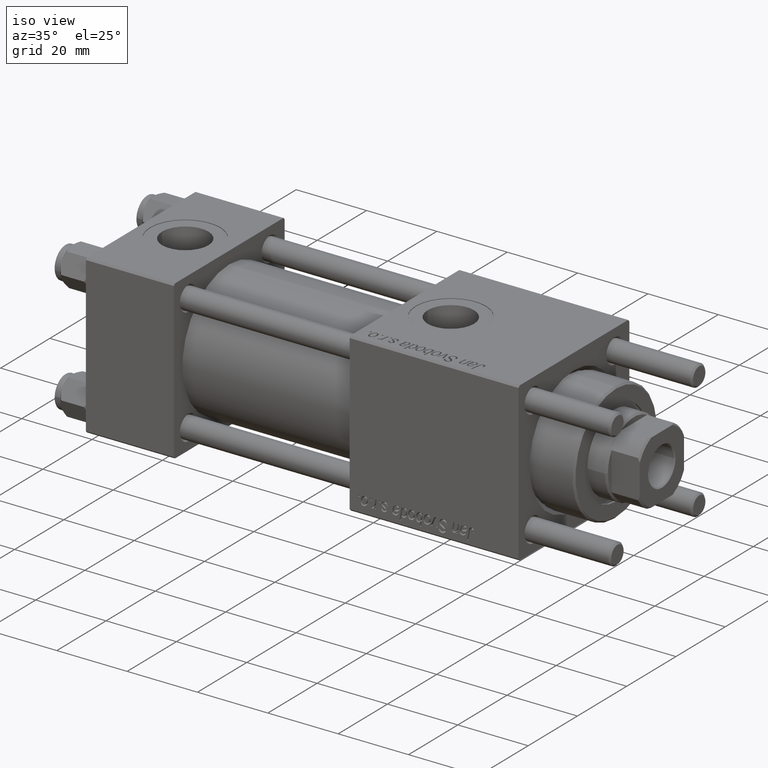
[diagram: clean part render]
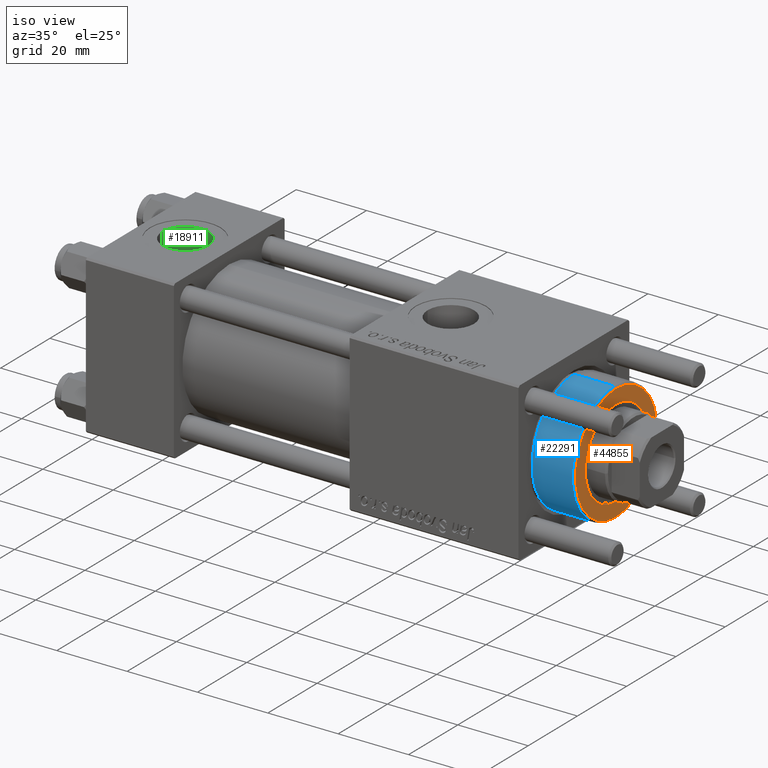
[diagram: same view with three faces highlighted in distinct colors, each labeled with its STEP entity id]
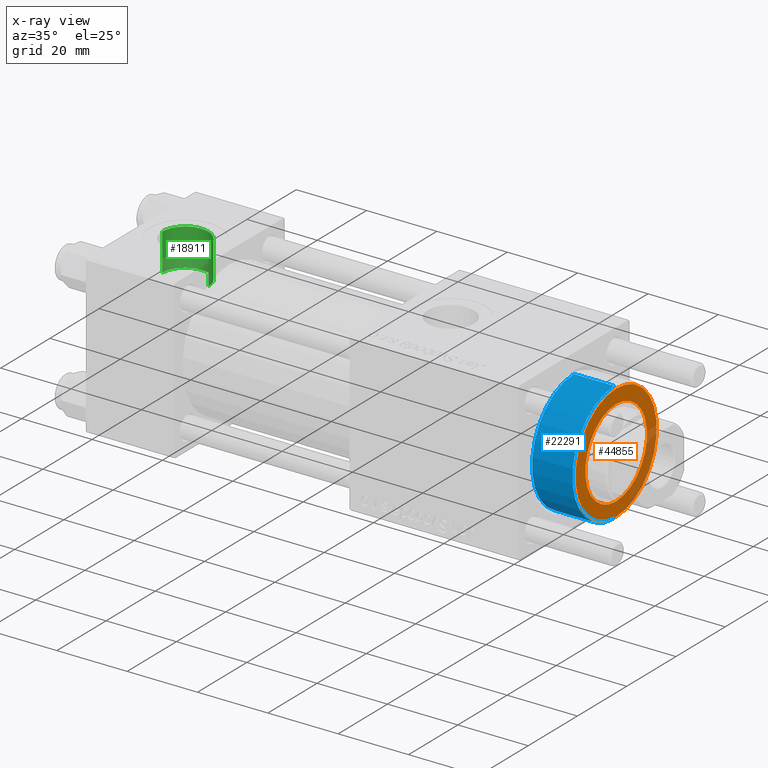
[diagram: x-ray of the same camera — body ghosted, the three highlighted faces saturated]
A machine part, iso view with three faces highlighted in distinct colors.
The next image is the same camera in x-ray (body ghosted, the three faces saturated) — at least one of them is partly hidden behind the body in this view.
Their STEP definitions:

[orange] entity #44855 — the highlighted planar face has unit normal (1, 0, 0).
#1667 = DIRECTION ( 'NONE',  ( 0.000000000000000000, 0.000000000000000000, 1.000000000000000000 ) ) ;
#2051 = VERTEX_POINT ( 'NONE', #17337 ) ;
#3346 = CIRCLE ( 'NONE', #47437, 12.50000000000000000 ) ;
#3363 = EDGE_CURVE ( 'NONE', #33129, #2051, #17204, .T. ) ;
#5170 = DIRECTION ( 'NONE',  ( 1.000000000000000000, 0.000000000000000000, -0.000000000000000000 ) ) ;
#6328 = CARTESIAN_POINT ( 'NONE',  ( 0.000000000000000000, 0.000000000000000000, 40.70000000000000284 ) ) ;
#6437 = CARTESIAN_POINT ( 'NONE',  ( 0.000000000000000000, 0.000000000000000000, 40.70000000000000284 ) ) ;
#9731 = ORIENTED_EDGE ( 'NONE', *, *, #32327, .F. ) ;
#10447 = DIRECTION ( 'NONE',  ( 1.000000000000000000, 0.000000000000000000, 0.000000000000000000 ) ) ;
#10916 = CIRCLE ( 'NONE', #15515, 16.49999999999999289 ) ;
#12215 = EDGE_LOOP ( 'NONE', ( #9731, #56631 ) ) ;
#13026 = CARTESIAN_POINT ( 'NONE',  ( -16.49999999999999289, 0.000000000000000000, 40.70000000000000284 ) ) ;
#15175 = CARTESIAN_POINT ( 'NONE',  ( 0.000000000000000000, 0.000000000000000000, 40.70000000000000284 ) ) ;
#15515 = AXIS2_PLACEMENT_3D ( 'NONE', #6437, #23952, #19645 ) ;
#17204 = CIRCLE ( 'NONE', #23636, 16.49999999999999289 ) ;
#17337 = CARTESIAN_POINT ( 'NONE',  ( 16.49999999999999289, 2.051283388571816493E-15, 40.70000000000000284 ) ) ;
#18715 = VERTEX_POINT ( 'NONE', #21738 ) ;
#19645 = DIRECTION ( 'NONE',  ( 1.000000000000000000, 0.000000000000000000, 0.000000000000000000 ) ) ;
#20664 = DIRECTION ( 'NONE',  ( 1.000000000000000000, 0.000000000000000000, 0.000000000000000000 ) ) ;
#21738 = CARTESIAN_POINT ( 'NONE',  ( 12.50000000000000000, 0.000000000000000000, 40.70000000000000284 ) ) ;
#22135 = FACE_BOUND ( 'NONE', #12215, .T. ) ;
#23636 = AXIS2_PLACEMENT_3D ( 'NONE', #6328, #23851, #20664 ) ;
#23851 = DIRECTION ( 'NONE',  ( 0.000000000000000000, 0.000000000000000000, 1.000000000000000000 ) ) ;
#23952 = DIRECTION ( 'NONE',  ( 0.000000000000000000, 0.000000000000000000, 1.000000000000000000 ) ) ;
#25265 = EDGE_LOOP ( 'NONE', ( #43369, #30586 ) ) ;
#25487 = CIRCLE ( 'NONE', #48456, 12.50000000000000000 ) ;
#25880 = CARTESIAN_POINT ( 'NONE',  ( 0.000000000000000000, 0.000000000000000000, 40.70000000000000284 ) ) ;
#30586 = ORIENTED_EDGE ( 'NONE', *, *, #39461, .T. ) ;
#31188 = CARTESIAN_POINT ( 'NONE',  ( -12.50000000000000000, 1.530808498934191521E-15, 40.70000000000000284 ) ) ;
#31365 = PLANE ( 'NONE',  #55893 ) ;
#32327 = EDGE_CURVE ( 'NONE', #18715, #35550, #3346, .T. ) ;
#33129 = VERTEX_POINT ( 'NONE', #13026 ) ;
#35297 = EDGE_CURVE ( 'NONE', #35550, #18715, #25487, .T. ) ;
#35550 = VERTEX_POINT ( 'NONE', #31188 ) ;
#39461 = EDGE_CURVE ( 'NONE', #2051, #33129, #10916, .T. ) ;
#39990 = FACE_OUTER_BOUND ( 'NONE', #25265, .T. ) ;
#41369 = DIRECTION ( 'NONE',  ( 1.000000000000000000, 0.000000000000000000, 0.000000000000000000 ) ) ;
#43369 = ORIENTED_EDGE ( 'NONE', *, *, #3363, .T. ) ;
#44584 = DIRECTION ( 'NONE',  ( 0.000000000000000000, 0.000000000000000000, 1.000000000000000000 ) ) ;
#44855 = ADVANCED_FACE ( 'NONE', ( #22135, #39990 ), #31365, .T. ) ;
#47437 = AXIS2_PLACEMENT_3D ( 'NONE', #50499, #49843, #10447 ) ;
#48456 = AXIS2_PLACEMENT_3D ( 'NONE', #15175, #1667, #41369 ) ;
#49843 = DIRECTION ( 'NONE',  ( 0.000000000000000000, 0.000000000000000000, 1.000000000000000000 ) ) ;
#50499 = CARTESIAN_POINT ( 'NONE',  ( 0.000000000000000000, 0.000000000000000000, 40.70000000000000284 ) ) ;
#55893 = AXIS2_PLACEMENT_3D ( 'NONE', #25880, #44584, #5170 ) ;
#56631 = ORIENTED_EDGE ( 'NONE', *, *, #35297, .F. ) ;

[blue] entity #22291 — the highlighted cylindrical surface (partial cylindrical patch) has radius 17 mm, axis along (-1, -0, 0).
#986 = VERTEX_POINT ( 'NONE', #52959 ) ;
#5103 = AXIS2_PLACEMENT_3D ( 'NONE', #20287, #32974, #15970 ) ;
#6078 = CYLINDRICAL_SURFACE ( 'NONE', #12223, 17.00000000000000000 ) ;
#6815 = LINE ( 'NONE', #55375, #33228 ) ;
#7643 = VERTEX_POINT ( 'NONE', #9844 ) ;
#7772 = VERTEX_POINT ( 'NONE', #38866 ) ;
#9844 = CARTESIAN_POINT ( 'NONE',  ( -17.00000000000000000, 0.000000000000000000, 40.19999999999999574 ) ) ;
#10185 = CARTESIAN_POINT ( 'NONE',  ( -17.00000000000000000, 0.000000000000000000, 28.69999999999999929 ) ) ;
#12223 = AXIS2_PLACEMENT_3D ( 'NONE', #49498, #23588, #22750 ) ;
#12278 = ORIENTED_EDGE ( 'NONE', *, *, #52351, .F. ) ;
#15970 = DIRECTION ( 'NONE',  ( 1.000000000000000000, 0.000000000000000000, 0.000000000000000000 ) ) ;
#15995 = DIRECTION ( 'NONE',  ( -0.000000000000000000, -0.000000000000000000, -1.000000000000000000 ) ) ;
#17890 = DIRECTION ( 'NONE',  ( 1.000000000000000000, 0.000000000000000000, 0.000000000000000000 ) ) ;
#18360 = LINE ( 'NONE', #36777, #55529 ) ;
#20287 = CARTESIAN_POINT ( 'NONE',  ( 0.000000000000000000, 0.000000000000000000, 40.19999999999999574 ) ) ;
#21058 = ORIENTED_EDGE ( 'NONE', *, *, #29502, .T. ) ;
#21628 = DIRECTION ( 'NONE',  ( 0.000000000000000000, 0.000000000000000000, 1.000000000000000000 ) ) ;
#22291 = ADVANCED_FACE ( 'NONE', ( #45481 ), #6078, .T. ) ;
#22750 = DIRECTION ( 'NONE',  ( -1.000000000000000000, 0.000000000000000000, 0.000000000000000000 ) ) ;
#23588 = DIRECTION ( 'NONE',  ( -0.000000000000000000, -0.000000000000000000, -1.000000000000000000 ) ) ;
#25105 = CARTESIAN_POINT ( 'NONE',  ( 0.000000000000000000, 0.000000000000000000, 28.69999999999999929 ) ) ;
#25510 = ORIENTED_EDGE ( 'NONE', *, *, #40197, .T. ) ;
#28314 = EDGE_CURVE ( 'NONE', #7643, #28554, #18360, .T. ) ;
#28554 = VERTEX_POINT ( 'NONE', #10185 ) ;
#29502 = EDGE_CURVE ( 'NONE', #986, #7643, #50978, .T. ) ;
#31203 = EDGE_LOOP ( 'NONE', ( #12278, #21058, #50396, #25510 ) ) ;
#32974 = DIRECTION ( 'NONE',  ( 0.000000000000000000, 0.000000000000000000, -1.000000000000000000 ) ) ;
#33228 = VECTOR ( 'NONE', #15995, 1000.000000000000000 ) ;
#36777 = CARTESIAN_POINT ( 'NONE',  ( -17.00000000000000000, 0.000000000000000000, 40.70000000000000284 ) ) ;
#38866 = CARTESIAN_POINT ( 'NONE',  ( 17.00000000000000000, 2.081899558550500280E-15, 28.69999999999999929 ) ) ;
#40197 = EDGE_CURVE ( 'NONE', #28554, #7772, #49520, .T. ) ;
#45119 = DIRECTION ( 'NONE',  ( -0.000000000000000000, -0.000000000000000000, -1.000000000000000000 ) ) ;
#45481 = FACE_OUTER_BOUND ( 'NONE', #31203, .T. ) ;
#49498 = CARTESIAN_POINT ( 'NONE',  ( 0.000000000000000000, 0.000000000000000000, 40.70000000000000284 ) ) ;
#49520 = CIRCLE ( 'NONE', #56834, 17.00000000000000000 ) ;
#50396 = ORIENTED_EDGE ( 'NONE', *, *, #28314, .T. ) ;
#50978 = CIRCLE ( 'NONE', #5103, 17.00000000000000000 ) ;
#52351 = EDGE_CURVE ( 'NONE', #986, #7772, #6815, .T. ) ;
#52959 = CARTESIAN_POINT ( 'NONE',  ( 17.00000000000000000, 2.081899558550500280E-15, 40.19999999999999574 ) ) ;
#55375 = CARTESIAN_POINT ( 'NONE',  ( 17.00000000000000000, 2.081899558550500280E-15, 40.70000000000000284 ) ) ;
#55529 = VECTOR ( 'NONE', #45119, 1000.000000000000000 ) ;
#56834 = AXIS2_PLACEMENT_3D ( 'NONE', #25105, #21628, #17890 ) ;

[green] entity #18911 — the highlighted cylindrical surface (edge-blend (fillet) strip) has radius 6.58 mm, axis along (0, 0, 1).
#231 = EDGE_CURVE ( 'NONE', #27590, #11795, #31988, .T. ) ;
#4747 = ORIENTED_EDGE ( 'NONE', *, *, #39016, .T. ) ;
#5523 = DIRECTION ( 'NONE',  ( -0.000000000000000000, -0.000000000000000000, 1.000000000000000000 ) ) ;
#6768 = CARTESIAN_POINT ( 'NONE',  ( 19.07999999999999829, -1.734723475976807094E-15, 11.66598726114649409 ) ) ;
#7234 = CIRCLE ( 'NONE', #12732, 6.579999999999999183 ) ;
#10246 = DIRECTION ( 'NONE',  ( -0.000000000000000000, -0.000000000000000000, 1.000000000000000000 ) ) ;
#11253 = CARTESIAN_POINT ( 'NONE',  ( 12.50000000000000000, -1.734723475976807094E-15, 22.30000000000000071 ) ) ;
#11795 = VERTEX_POINT ( 'NONE', #16236 ) ;
#12732 = AXIS2_PLACEMENT_3D ( 'NONE', #43634, #21746, #25783 ) ;
#16236 = CARTESIAN_POINT ( 'NONE',  ( 19.07999999999999829, -1.734723475976807094E-15, 22.30000000000000071 ) ) ;
#16404 = DIRECTION ( 'NONE',  ( -0.000000000000000000, -0.000000000000000000, 1.000000000000000000 ) ) ;
#18911 = ADVANCED_FACE ( 'NONE', ( #49637 ), #53641, .F. ) ;
#20146 = CIRCLE ( 'NONE', #23785, 6.579999999999999183 ) ;
#21037 = CARTESIAN_POINT ( 'NONE',  ( 5.920000000000002593, -9.289058821378490386E-16, 22.30000000000000071 ) ) ;
#21285 = LINE ( 'NONE', #38860, #49635 ) ;
#21746 = DIRECTION ( 'NONE',  ( -0.000000000000000000, -0.000000000000000000, -1.000000000000000000 ) ) ;
#23785 = AXIS2_PLACEMENT_3D ( 'NONE', #11253, #28797, #46355 ) ;
#25783 = DIRECTION ( 'NONE',  ( 1.000000000000000000, 0.000000000000000000, 0.000000000000000000 ) ) ;
#26069 = VERTEX_POINT ( 'NONE', #49589 ) ;
#26078 = EDGE_LOOP ( 'NONE', ( #36456, #4747, #50758, #31864 ) ) ;
#27590 = VERTEX_POINT ( 'NONE', #6768 ) ;
#27769 = DIRECTION ( 'NONE',  ( 1.000000000000000000, 0.000000000000000000, 0.000000000000000000 ) ) ;
#28797 = DIRECTION ( 'NONE',  ( 0.000000000000000000, 0.000000000000000000, 1.000000000000000000 ) ) ;
#31829 = CARTESIAN_POINT ( 'NONE',  ( 12.50000000000000000, -1.734723475976807094E-15, 11.69999999999999929 ) ) ;
#31864 = ORIENTED_EDGE ( 'NONE', *, *, #45615, .T. ) ;
#31988 = LINE ( 'NONE', #53802, #33702 ) ;
#33702 = VECTOR ( 'NONE', #5523, 1000.000000000000000 ) ;
#36456 = ORIENTED_EDGE ( 'NONE', *, *, #48343, .F. ) ;
#38860 = CARTESIAN_POINT ( 'NONE',  ( 5.920000000000002593, -9.289058821378490386E-16, 11.69999999999999929 ) ) ;
#39016 = EDGE_CURVE ( 'NONE', #26069, #27590, #7234, .T. ) ;
#43634 = CARTESIAN_POINT ( 'NONE',  ( 12.50000000000000000, -1.734723475976807094E-15, 11.66598726114649409 ) ) ;
#45100 = AXIS2_PLACEMENT_3D ( 'NONE', #31829, #10246, #27769 ) ;
#45615 = EDGE_CURVE ( 'NONE', #11795, #45836, #20146, .T. ) ;
#45836 = VERTEX_POINT ( 'NONE', #21037 ) ;
#46355 = DIRECTION ( 'NONE',  ( 1.000000000000000000, 0.000000000000000000, 0.000000000000000000 ) ) ;
#48343 = EDGE_CURVE ( 'NONE', #26069, #45836, #21285, .T. ) ;
#49589 = CARTESIAN_POINT ( 'NONE',  ( 5.920000000000002593, -9.289058821378490386E-16, 11.66598726114649409 ) ) ;
#49635 = VECTOR ( 'NONE', #16404, 1000.000000000000000 ) ;
#49637 = FACE_OUTER_BOUND ( 'NONE', #26078, .T. ) ;
#50758 = ORIENTED_EDGE ( 'NONE', *, *, #231, .T. ) ;
#53641 = CYLINDRICAL_SURFACE ( 'NONE', #45100, 6.579999999999999183 ) ;
#53802 = CARTESIAN_POINT ( 'NONE',  ( 19.07999999999999829, -1.734723475976807094E-15, 11.69999999999999929 ) ) ;